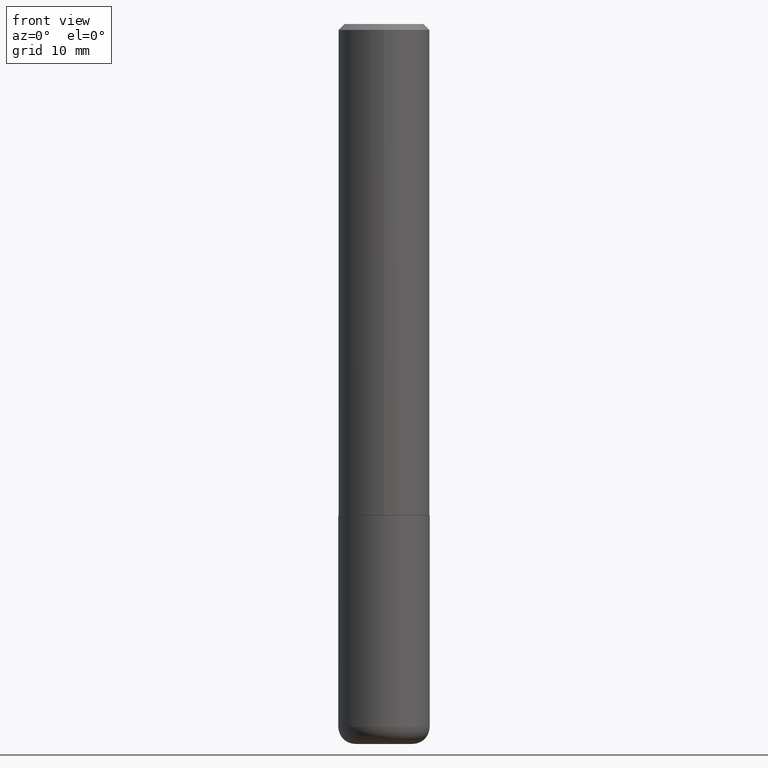
[diagram: clean part render]
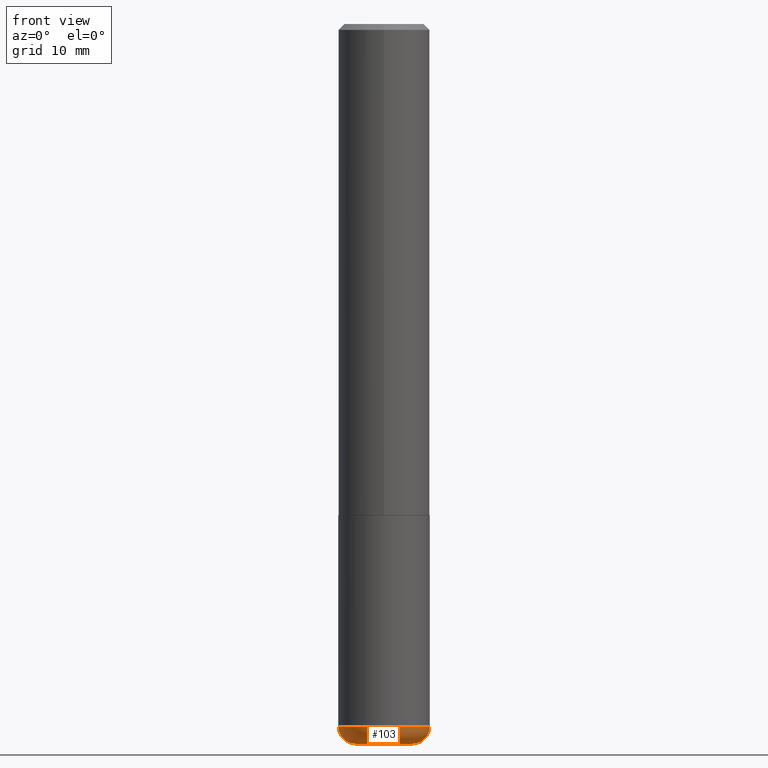
[diagram: same view with one face highlighted and labeled with its STEP entity id]
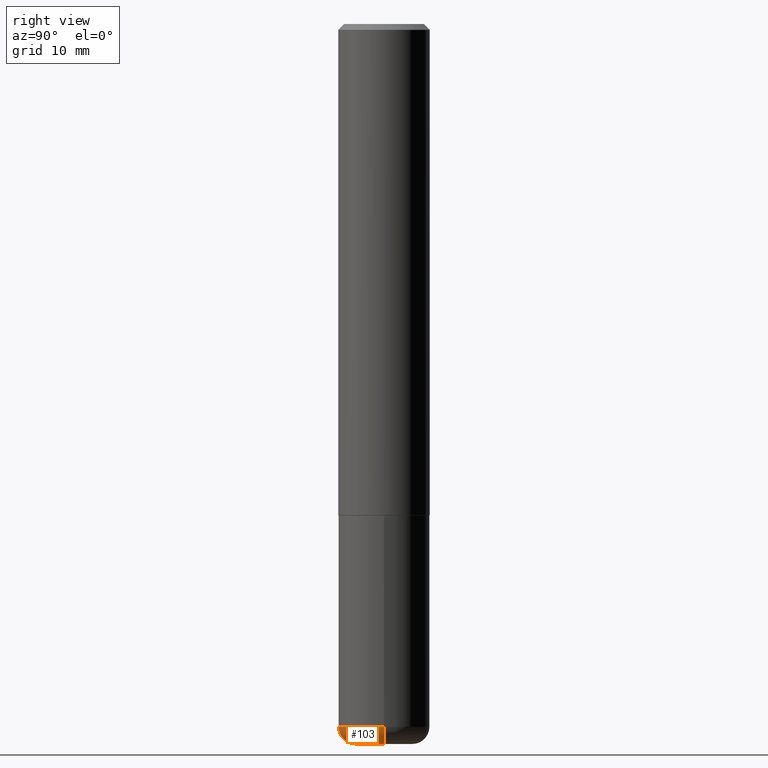
[diagram: same view with one face highlighted and labeled with its STEP entity id]
A machine part, front view. The second image highlights one B-rep face of the part: STEP entity #103.
A second angle (right view) of the same face is appended — the face is thin or edge-on in the first view.
In plain terms, the highlighted toroidal blend (fillet) surface has major radius 2.4994 mm and minor (blend) radius 1.5011 mm.
Its self-contained STEP definition (entity closure, byte-faithful):
#13 = DIRECTION ( 'NONE',  ( -2.445468806185136597E-29, 3.491481338843145583E-15, 1.000000000000000000 ) ) ;
#17 = DIRECTION ( 'NONE',  ( 1.000000000000000000, -6.982962677686267499E-15, 0.000000000000000000 ) ) ;
#26 = VERTEX_POINT ( 'NONE', #352 ) ;
#31 = AXIS2_PLACEMENT_3D ( 'NONE', #367, #244, #206 ) ;
#37 = ORIENTED_EDGE ( 'NONE', *, *, #42, .F. ) ;
#40 = CARTESIAN_POINT ( 'NONE',  ( 5.920969073535453422E-29, -8.453574617607024936E-15, -2.421200000000000241 ) ) ;
#42 = EDGE_CURVE ( 'NONE', #171, #149, #355, .T. ) ;
#44 = DIRECTION ( 'NONE',  ( 1.000000000000000000, -6.982962677686269866E-15, 4.883557194083114022E-29 ) ) ;
#93 = EDGE_CURVE ( 'NONE', #171, #351, #150, .T. ) ;
#101 = CARTESIAN_POINT ( 'NONE',  ( -0.09840000000000000135, -7.647608460764791890E-15, -2.480300000000000171 ) ) ;
#103 = ADVANCED_FACE ( 'NONE', ( #105 ), #255, .T. ) ;
#105 = FACE_OUTER_BOUND ( 'NONE', #256, .T. ) ;
#122 = AXIS2_PLACEMENT_3D ( 'NONE', #407, #304, #17 ) ;
#125 = DIRECTION ( 'NONE',  ( -1.000000000000000000, 7.105427357600997914E-15, 0.000000000000000000 ) ) ;
#142 = CARTESIAN_POINT ( 'NONE',  ( 0.09840000000000000135, -9.347044692216982806E-15, -2.480300000000000171 ) ) ;
#149 = VERTEX_POINT ( 'NONE', #265 ) ;
#150 = CIRCLE ( 'NONE', #393, 0.09840000000000000135 ) ;
#152 = ORIENTED_EDGE ( 'NONE', *, *, #278, .T. ) ;
#171 = VERTEX_POINT ( 'NONE', #101 ) ;
#193 = DIRECTION ( 'NONE',  ( -2.445468806185136597E-29, 3.491481338843145583E-15, 1.000000000000000000 ) ) ;
#206 = DIRECTION ( 'NONE',  ( 1.000000000000000000, -6.982962677686266711E-15, 0.000000000000000000 ) ) ;
#208 = AXIS2_PLACEMENT_3D ( 'NONE', #314, #418, #125 ) ;
#244 = DIRECTION ( 'NONE',  ( -6.982962677686266711E-15, -1.000000000000000000, 3.491481338843145583E-15 ) ) ;
#255 = TOROIDAL_SURFACE ( 'NONE', #262, 0.09840000000000000135, 0.05909999999999997200 ) ;
#256 = EDGE_LOOP ( 'NONE', ( #37, #379, #152, #331 ) ) ;
#262 = AXIS2_PLACEMENT_3D ( 'NONE', #40, #13, #44 ) ;
#265 = CARTESIAN_POINT ( 'NONE',  ( -0.1575000000000000011, -7.334469808784867333E-15, -2.421200000000000241 ) ) ;
#278 = EDGE_CURVE ( 'NONE', #351, #26, #377, .T. ) ;
#298 = CIRCLE ( 'NONE', #122, 0.1575000000000000289 ) ;
#304 = DIRECTION ( 'NONE',  ( -2.445468806185136597E-29, 3.491481338843145583E-15, 1.000000000000000000 ) ) ;
#314 = CARTESIAN_POINT ( 'NONE',  ( -0.09840000000000000135, -7.754400565619087626E-15, -2.421200000000000241 ) ) ;
#328 = DIRECTION ( 'NONE',  ( 1.000000000000000000, -6.982962677686261977E-15, 0.000000000000000000 ) ) ;
#331 = ORIENTED_EDGE ( 'NONE', *, *, #345, .F. ) ;
#345 = EDGE_CURVE ( 'NONE', #149, #26, #298, .T. ) ;
#351 = VERTEX_POINT ( 'NONE', #142 ) ;
#352 = CARTESIAN_POINT ( 'NONE',  ( 0.1575000000000000011, -9.553391239342613205E-15, -2.421200000000000241 ) ) ;
#355 = CIRCLE ( 'NONE', #208, 0.05909999999999995812 ) ;
#361 = CARTESIAN_POINT ( 'NONE',  ( 6.065496279980994755E-29, -8.659921164732655335E-15, -2.480300000000000171 ) ) ;
#367 = CARTESIAN_POINT ( 'NONE',  ( 0.09840000000000000135, -9.140698145091353984E-15, -2.421200000000000241 ) ) ;
#377 = CIRCLE ( 'NONE', #31, 0.05909999999999995812 ) ;
#379 = ORIENTED_EDGE ( 'NONE', *, *, #93, .T. ) ;
#393 = AXIS2_PLACEMENT_3D ( 'NONE', #361, #193, #328 ) ;
#407 = CARTESIAN_POINT ( 'NONE',  ( 5.920969073535453422E-29, -8.453574617607024936E-15, -2.421200000000000241 ) ) ;
#418 = DIRECTION ( 'NONE',  ( 7.105427357601001859E-15, 1.000000000000000000, -3.491481338843145583E-15 ) ) ;